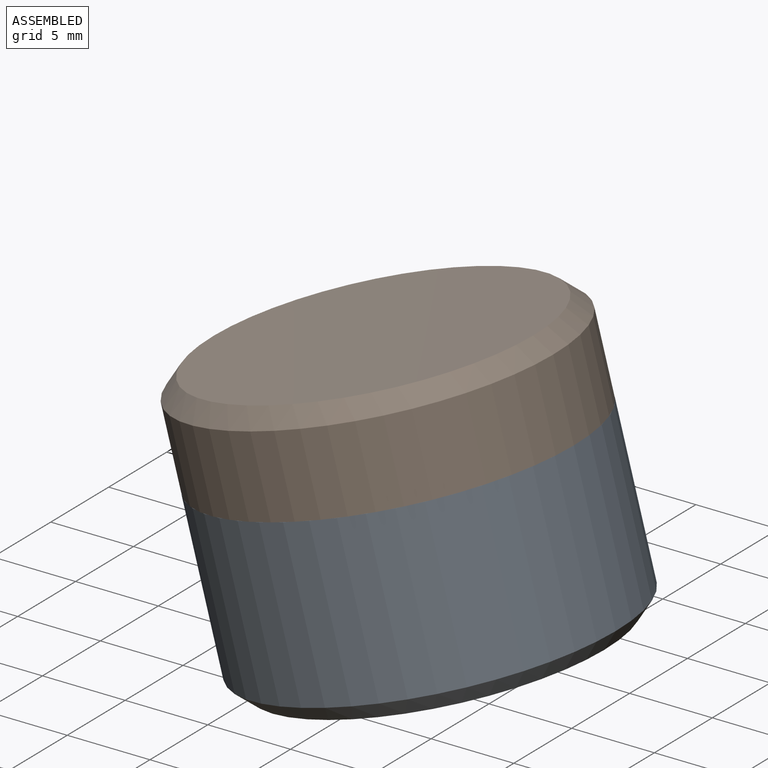
[diagram: assembled view]
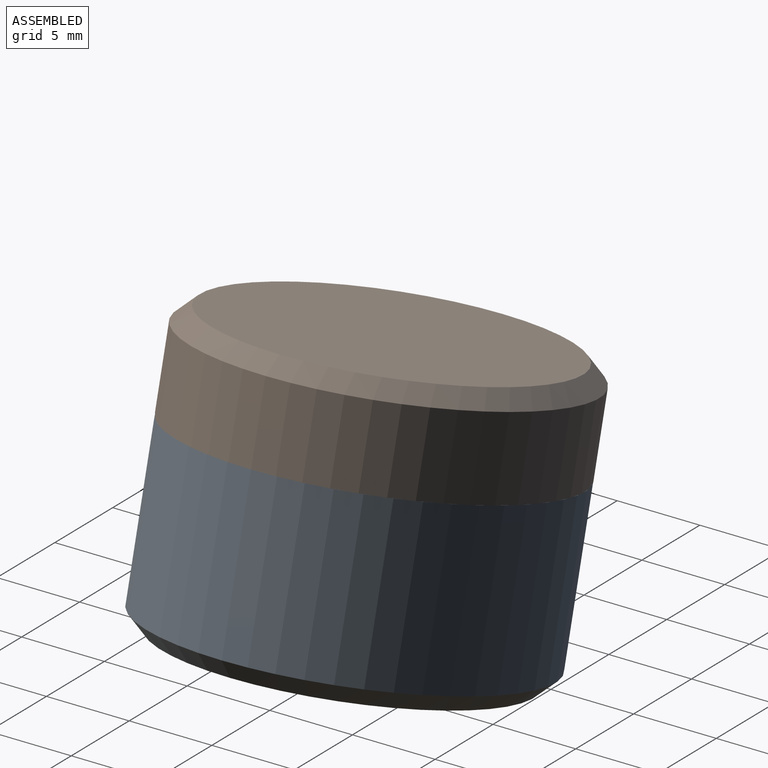
[diagram: assembled view, second angle]
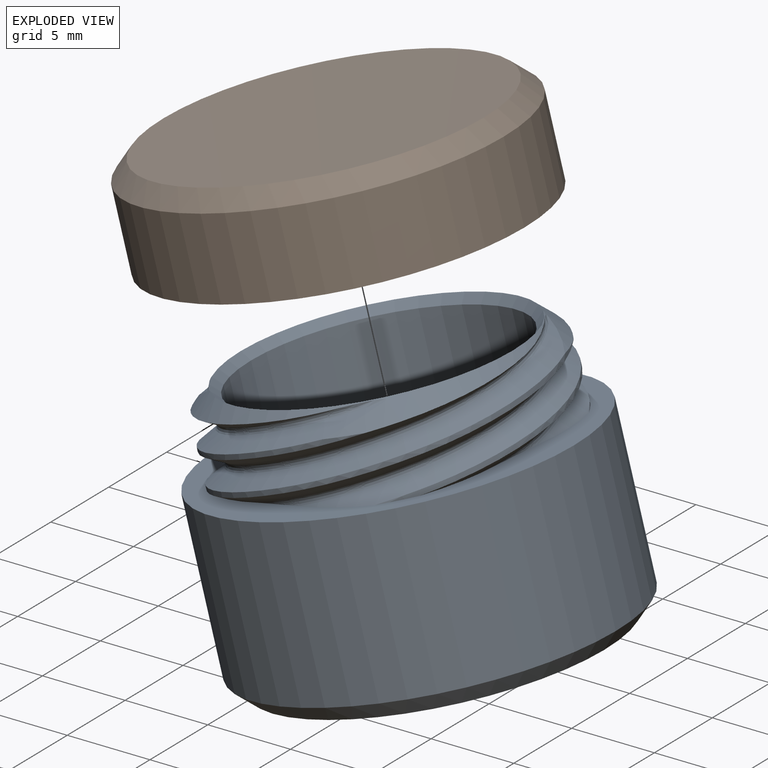
[diagram: exploded view]
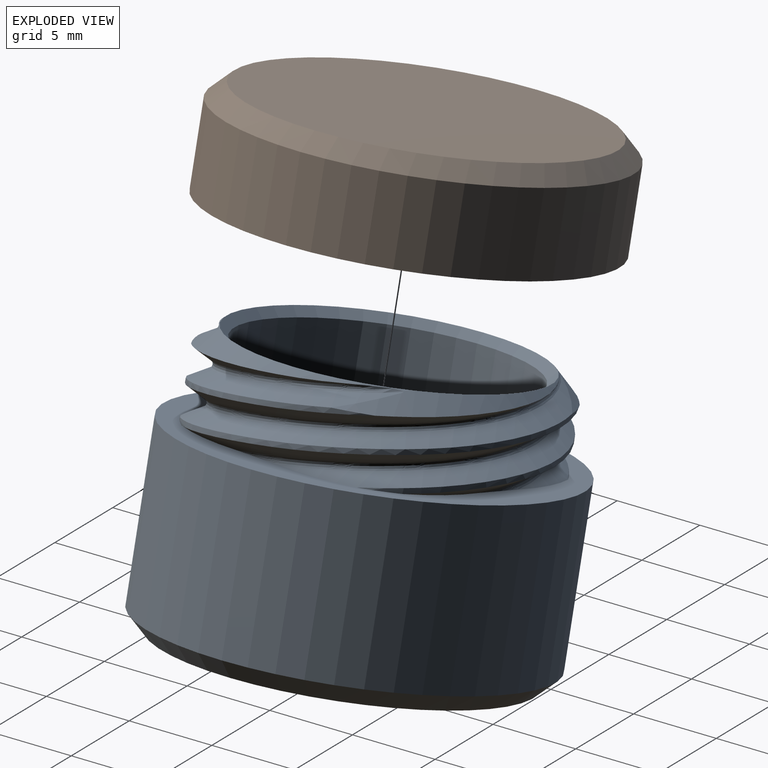
[diagram: exploded view, second angle]
ASSEMBLY  parts=2 mates=2
PART A: 24 faces, bbox 22.2x22.2x17.2 mm
  f0: cylinder r=9.75mm len=18.29mm, axis (0,0,-1), area 8.5mm2, adj f1,f12,f16,f20
  f1: bspline ~20x20mm, area 39.6mm2, adj f0,f2,f12,f20
  f2: bspline ~17.3x14.77mm, area 17.1mm2, adj f1,f3,f12,f20
  f3: bspline ~20x17.07mm, area 39.6mm2, adj f2,f4,f12,f20
  f4: cylinder r=9.75mm len=18.29mm, axis (0,0,-1), area 8.5mm2, adj f3,f5,f12,f20
  f5: bspline ~20x20mm, area 38.6mm2, adj f4,f6,f12,f20
  f6: bspline ~17.3x14.77mm, area 17.1mm2, adj f5,f7,f12,f20
  f7: bspline ~20x17.07mm, area 39.6mm2, adj f6,f8,f12,f20
  f8: cylinder r=9.75mm len=18.29mm, axis (0,0,-1), area 8.5mm2, adj f7,f9,f12,f20
  f9: bspline ~20x20mm, area 39.6mm2, adj f8,f10,f12,f20
  f10: bspline ~17.3x14.77mm, area 17.1mm2, adj f9,f11,f12,f20
  f11: bspline ~20x17.07mm, area 39.6mm2, adj f10,f12,f19,f20
  f12: cone r=8.5mm half-angle=45deg, axis (0,0,-1), area 51.4mm2, adj f0,f1,f2,f3,f4,f5,f6,f7
  f13: plane 16x16mm, normal (0,0,1), area 201.1mm2, adj f14
  f14: cylinder r=8mm len=16mm, axis (0,0,1), area 728.8mm2, adj f13,f15
  f15: cone r=8mm half-angle=45deg, axis (0,0,1), area 36.7mm2, adj f12,f14
  f16: bspline ~20x17.07mm, area 39.6mm2, adj f0,f12,f17,f20
  f17: bspline ~17.3x14.77mm, area 17.1mm2, adj f12,f16,f18,f20
  f18: bspline ~20x20mm, area 39.6mm2, adj f12,f17,f19,f20
  f19: cylinder r=9.75mm len=18.29mm, axis (0,0,-1), area 8.5mm2, adj f11,f12,f18,f20
  f20: plane 22.17x22.17mm, normal (0,0,1), area 116.8mm2, adj f0,f1,f2,f3,f4,f5,f6,f7
  f21: cylinder r=11mm len=22mm, axis (0,0,-1), area 677.3mm2, adj f20,f23
  f22: plane 20x20mm, normal (0,0,-1), area 314.2mm2, adj f23
  f23: cone r=11mm half-angle=45deg, axis (0,0,1), area 93.3mm2, adj f21,f22
PART B: 25 faces, bbox 22.2x22.2x7.6 mm
  f0: cylinder r=9.02mm len=17.08mm, axis (0,0,-1), area 9.1mm2, adj f1,f2,f9,f22
  f1: cone r=9.77mm half-angle=45deg, axis (0,0,-1), area 5.7mm2, adj f0,f2,f9,f17
  f2: bspline ~20.24x17.27mm, area 45.6mm2, adj f0,f1,f3,f17,f22
  f3: bspline ~20.61x20.61mm, area 21mm2, adj f2,f4,f17,f22
  f4: bspline ~20.24x20.24mm, area 45.6mm2, adj f3,f15,f17,f21,f22
  f5: cylinder r=9.02mm len=17.08mm, axis (0,0,-1), area 9.1mm2, adj f6,f7,f14,f22
  f6: cone r=9.77mm half-angle=45deg, axis (0,0,-1), area 5.7mm2, adj f5,f7,f14,f17
  f7: bspline ~20.24x17.27mm, area 45.6mm2, adj f5,f6,f8,f17,f22
  f8: bspline ~20.61x20.61mm, area 21mm2, adj f7,f9,f17,f22
  f9: bspline ~20.24x20.24mm, area 45.6mm2, adj f0,f1,f8,f17,f22
  f10: cylinder r=9.02mm len=17.08mm, axis (0,0,-1), area 9.1mm2, adj f11,f12,f19,f22
  f11: cone r=9.77mm half-angle=45deg, axis (0,0,-1), area 5.7mm2, adj f10,f12,f17,f19
  f12: bspline ~20.24x17.27mm, area 45.6mm2, adj f10,f11,f13,f17,f22
  f13: bspline ~20.61x20.61mm, area 21mm2, adj f12,f14,f17,f22
  f14: bspline ~20.24x20.24mm, area 45.6mm2, adj f5,f6,f13,f17,f22
  f15: cone r=9.77mm half-angle=45deg, axis (0,0,-1), area 5.7mm2, adj f4,f17,f20,f21
  f16: cylinder r=11mm len=22mm, axis (0,0,-1), area 331.8mm2, adj f17,f24
  f17: plane 22.07x22.07mm, normal (0,0,-1), area 72mm2, adj f1,f2,f3,f4,f6,f7,f8,f9
  f18: bspline ~20.61x20.61mm, area 21mm2, adj f17,f19,f20,f22
  f19: bspline ~20.24x20.24mm, area 45.6mm2, adj f10,f11,f17,f18,f22
  f20: bspline ~20.24x17.27mm, area 45.6mm2, adj f15,f17,f18,f21,f22
  f21: cylinder r=9.02mm len=17.08mm, axis (0,0,-1), area 9.1mm2, adj f4,f15,f20,f22
  f22: plane 20.64x20.64mm, normal (0,0,-1), area 291.7mm2, adj f0,f2,f3,f4,f5,f7,f8,f9
  f23: plane 20x20mm, normal (0,0,1), area 314.2mm2, adj f24
  f24: cone r=10mm half-angle=45deg, axis (0,0,-1), area 93.3mm2, adj f16,f23
PLACE A rot(axis=(0,-1,0),15deg) t=(33.49,23.3,-7.56)mm
PLACE B rot(axis=(0,-1,0),15deg) t=(30.7,23.3,2.88)mm
MATE slider A.f21 <-> B.f16  axis (0.26,0,-0.97) through (33.23,23.3,-6.59)mm
MATE fastened A.f21 <-> B.f16  axis (-0.26,0,0.97) through (30.7,23.3,2.88)mm
